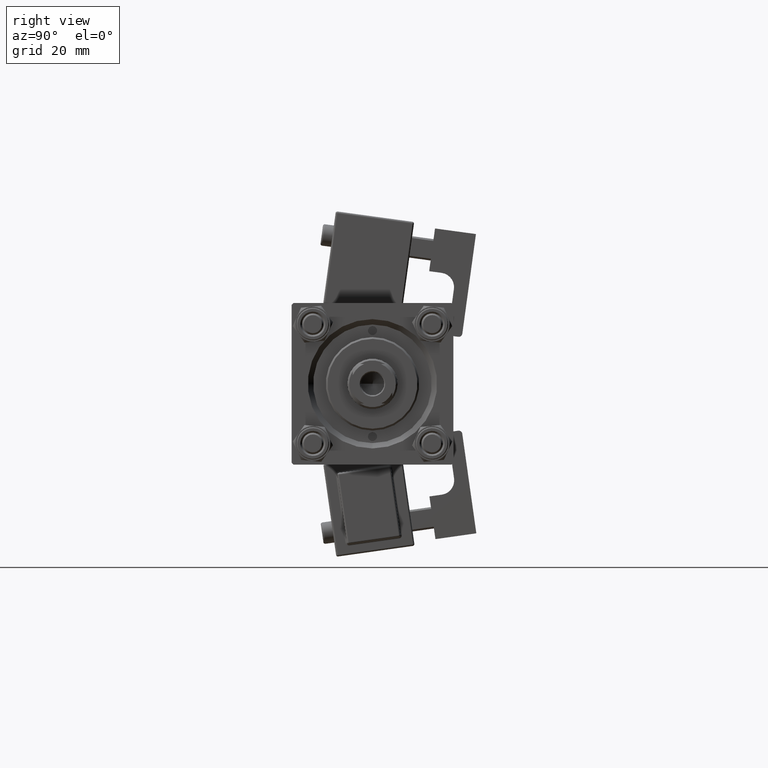
[diagram: clean part render]
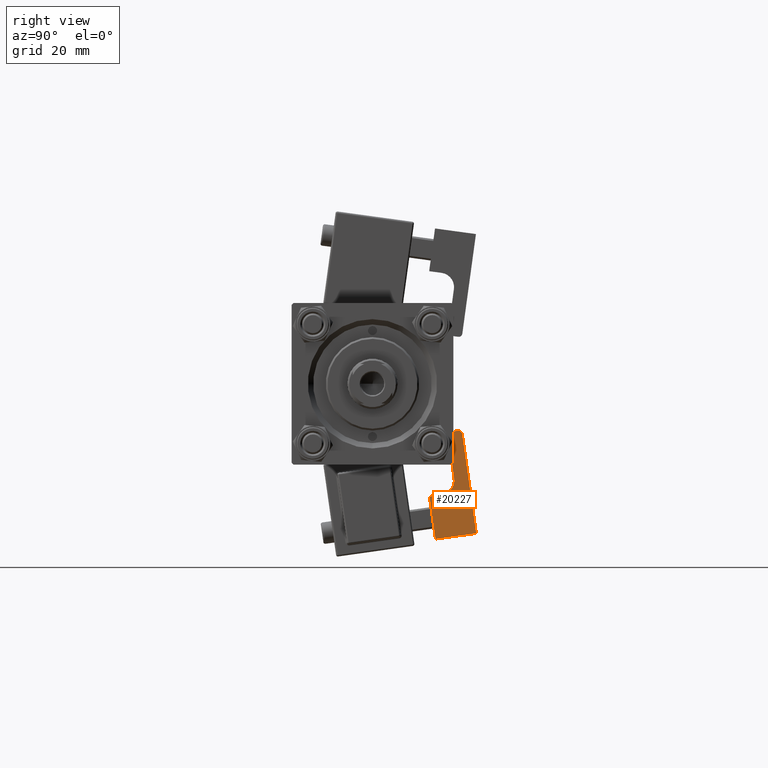
[diagram: same view with one face highlighted and labeled with its STEP entity id]
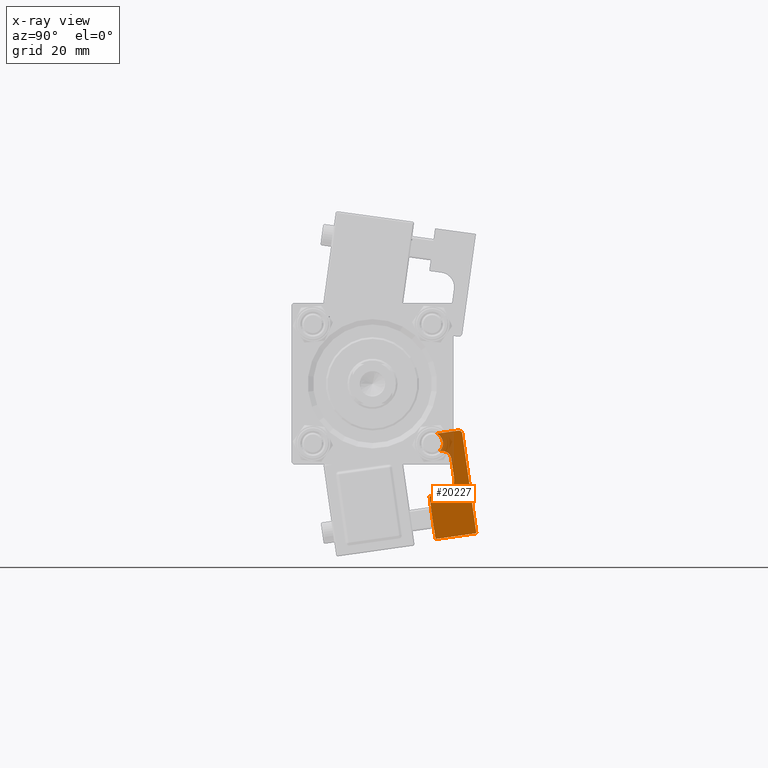
[diagram: x-ray of the same camera — body ghosted, the highlighted face saturated]
A machine part, right view. The second image highlights one B-rep face of the part: STEP entity #20227.
The next image is the same camera in x-ray: the body ghosted, the highlighted face saturated — about 9% of this face is hidden behind the body in this view.
In plain terms, the highlighted planar face has unit normal (-1, 0, -0).
Its self-contained STEP definition (entity closure, byte-faithful):
#615 = DIRECTION ( 'NONE',  ( -1.000000000000000000, 0.000000000000000000, 0.000000000000000000 ) ) ;
#954 = DIRECTION ( 'NONE',  ( 0.000000000000000000, 1.000000000000000000, 0.000000000000000000 ) ) ;
#1268 = ORIENTED_EDGE ( 'NONE', *, *, #29803, .T. ) ;
#2699 = LINE ( 'NONE', #47130, #24006 ) ;
#2921 = CIRCLE ( 'NONE', #13086, 2.499999999999998668 ) ;
#3013 = CARTESIAN_POINT ( 'NONE',  ( 5.750000000000000000, 1.749999999999997558, 16.00000000000000000 ) ) ;
#3387 = CARTESIAN_POINT ( 'NONE',  ( 5.750000000000000000, 1.749999999999999112, 21.50000000000000000 ) ) ;
#3876 = EDGE_CURVE ( 'NONE', #46003, #36386, #44143, .T. ) ;
#4122 = VERTEX_POINT ( 'NONE', #50728 ) ;
#4397 = ORIENTED_EDGE ( 'NONE', *, *, #21844, .F. ) ;
#4522 = DIRECTION ( 'NONE',  ( -0.000000000000000000, 1.000000000000000000, -0.000000000000000000 ) ) ;
#4870 = DIRECTION ( 'NONE',  ( 0.000000000000000000, 0.000000000000000000, 1.000000000000000000 ) ) ;
#4957 = LINE ( 'NONE', #16299, #51891 ) ;
#5061 = VERTEX_POINT ( 'NONE', #3387 ) ;
#5583 = EDGE_CURVE ( 'NONE', #6088, #17204, #42465, .T. ) ;
#6088 = VERTEX_POINT ( 'NONE', #50286 ) ;
#7258 = EDGE_CURVE ( 'NONE', #36386, #38201, #45037, .T. ) ;
#7927 = CARTESIAN_POINT ( 'NONE',  ( 5.750000000000000000, -1.249999999999999334, 29.00000000000000000 ) ) ;
#8273 = CARTESIAN_POINT ( 'NONE',  ( 5.750000000000000000, -1.015596606550550396, 24.19533616120787300 ) ) ;
#8499 = CARTESIAN_POINT ( 'NONE',  ( 5.750000000000000000, 5.750000000000001776, 0.000000000000000000 ) ) ;
#8556 = VERTEX_POINT ( 'NONE', #40981 ) ;
#8599 = DIRECTION ( 'NONE',  ( 1.000000000000000000, -0.000000000000000000, -0.000000000000000000 ) ) ;
#9686 = VECTOR ( 'NONE', #4522, 1000.000000000000000 ) ;
#10619 = CARTESIAN_POINT ( 'NONE',  ( 5.750000000000000000, 1.750000000000000000, 24.00000000000000000 ) ) ;
#10703 = CARTESIAN_POINT ( 'NONE',  ( 5.750000000000000000, -1.249999999999999334, 29.00000000000000000 ) ) ;
#11583 = DIRECTION ( 'NONE',  ( -1.000000000000000000, 0.000000000000000000, 0.000000000000000000 ) ) ;
#11756 = EDGE_CURVE ( 'NONE', #38201, #17282, #2699, .T. ) ;
#12101 = EDGE_CURVE ( 'NONE', #17282, #16673, #40632, .T. ) ;
#12304 = CARTESIAN_POINT ( 'NONE',  ( 5.750000000000000000, 4.750000000000001776, 28.00000000000000000 ) ) ;
#13068 = CARTESIAN_POINT ( 'NONE',  ( 5.750000000000000000, 5.750000000000001776, 12.00000000000000000 ) ) ;
#13086 = AXIS2_PLACEMENT_3D ( 'NONE', #22104, #21335, #29296 ) ;
#13122 = VERTEX_POINT ( 'NONE', #3013 ) ;
#13497 = EDGE_CURVE ( 'NONE', #5061, #13122, #46842, .T. ) ;
#13612 = VECTOR ( 'NONE', #27923, 1000.000000000000000 ) ;
#13683 = ORIENTED_EDGE ( 'NONE', *, *, #11756, .T. ) ;
#15280 = DIRECTION ( 'NONE',  ( 0.000000000000000000, 0.000000000000000000, 1.000000000000000000 ) ) ;
#15917 = CARTESIAN_POINT ( 'NONE',  ( 5.750000000000000000, 5.750000000000000000, 29.00000000000000000 ) ) ;
#15969 = CARTESIAN_POINT ( 'NONE',  ( 5.750000000000000000, -2.936149805543990521, 26.50000000000000000 ) ) ;
#16011 = ORIENTED_EDGE ( 'NONE', *, *, #33821, .T. ) ;
#16299 = CARTESIAN_POINT ( 'NONE',  ( 5.750000000000000000, -5.750000000000000000, 12.00000000000000000 ) ) ;
#16673 = VERTEX_POINT ( 'NONE', #32871 ) ;
#17001 = ORIENTED_EDGE ( 'NONE', *, *, #13497, .T. ) ;
#17204 = VERTEX_POINT ( 'NONE', #43848 ) ;
#17282 = VERTEX_POINT ( 'NONE', #27479 ) ;
#17699 = FACE_OUTER_BOUND ( 'NONE', #37095, .T. ) ;
#17704 = ORIENTED_EDGE ( 'NONE', *, *, #39920, .F. ) ;
#18449 = ORIENTED_EDGE ( 'NONE', *, *, #12101, .T. ) ;
#19822 = DIRECTION ( 'NONE',  ( 0.000000000000000000, 0.7682212795973759611, -0.6401843996644797086 ) ) ;
#19966 = CARTESIAN_POINT ( 'NONE',  ( 5.750000000000000000, 5.750000000000001776, 12.00000000000000000 ) ) ;
#20227 = ADVANCED_FACE ( 'NONE', ( #17699 ), #33837, .F. ) ;
#21060 = ORIENTED_EDGE ( 'NONE', *, *, #3876, .T. ) ;
#21070 = DIRECTION ( 'NONE',  ( -0.000000000000000000, -0.000000000000000000, -1.000000000000000000 ) ) ;
#21335 = DIRECTION ( 'NONE',  ( -1.000000000000000000, 0.000000000000000000, 0.000000000000000000 ) ) ;
#21685 = CARTESIAN_POINT ( 'NONE',  ( 5.750000000000000000, -2.250000000000001776, 12.00000000000000000 ) ) ;
#21844 = EDGE_CURVE ( 'NONE', #50713, #34511, #30330, .T. ) ;
#22104 = CARTESIAN_POINT ( 'NONE',  ( 5.750000000000000000, -0.7500000000000007772, 21.50000000000000000 ) ) ;
#24006 = VECTOR ( 'NONE', #34966, 1000.000000000000114 ) ;
#24181 = DIRECTION ( 'NONE',  ( 0.000000000000000000, 0.000000000000000000, 1.000000000000000000 ) ) ;
#24730 = AXIS2_PLACEMENT_3D ( 'NONE', #12304, #8599, #29244 ) ;
#24969 = CARTESIAN_POINT ( 'NONE',  ( 5.750000000000000000, -2.250000000000002665, 16.00000000000000000 ) ) ;
#25884 = ORIENTED_EDGE ( 'NONE', *, *, #7258, .T. ) ;
#27479 = CARTESIAN_POINT ( 'NONE',  ( 5.750000000000000000, -1.249999999999999334, 24.00000000000000000 ) ) ;
#27648 = ORIENTED_EDGE ( 'NONE', *, *, #52301, .T. ) ;
#27659 = VECTOR ( 'NONE', #32323, 1000.000000000000000 ) ;
#27923 = DIRECTION ( 'NONE',  ( -0.000000000000000000, 1.000000000000000000, -0.000000000000000000 ) ) ;
#28538 = VECTOR ( 'NONE', #33702, 1000.000000000000000 ) ;
#29244 = DIRECTION ( 'NONE',  ( 0.000000000000000000, -2.602085213965208275E-15, 1.000000000000000000 ) ) ;
#29296 = DIRECTION ( 'NONE',  ( 0.000000000000000000, 0.000000000000000000, 1.000000000000000000 ) ) ;
#29731 = VECTOR ( 'NONE', #19822, 1000.000000000000114 ) ;
#29803 = EDGE_CURVE ( 'NONE', #50713, #8556, #4957, .T. ) ;
#30192 = AXIS2_PLACEMENT_3D ( 'NONE', #24969, #615, #4870 ) ;
#30330 = LINE ( 'NONE', #19966, #13612 ) ;
#31328 = ORIENTED_EDGE ( 'NONE', *, *, #5583, .T. ) ;
#31678 = VECTOR ( 'NONE', #47882, 1000.000000000000000 ) ;
#32119 = CARTESIAN_POINT ( 'NONE',  ( 5.750000000000000000, -5.750000000000000000, 12.00000000000000000 ) ) ;
#32323 = DIRECTION ( 'NONE',  ( 0.000000000000000000, -1.000000000000000000, 0.000000000000000000 ) ) ;
#32871 = CARTESIAN_POINT ( 'NONE',  ( 5.750000000000000000, -0.7500000000000007772, 24.00000000000000000 ) ) ;
#33702 = DIRECTION ( 'NONE',  ( -0.000000000000000000, -0.000000000000000000, -1.000000000000000000 ) ) ;
#33821 = EDGE_CURVE ( 'NONE', #16673, #5061, #2921, .T. ) ;
#33837 = PLANE ( 'NONE',  #44834 ) ;
#34511 = VERTEX_POINT ( 'NONE', #21685 ) ;
#34966 = DIRECTION ( 'NONE',  ( 0.000000000000000000, -0.7682212795973755171, -0.6401843996644802637 ) ) ;
#36386 = VERTEX_POINT ( 'NONE', #44913 ) ;
#37095 = EDGE_LOOP ( 'NONE', ( #17704, #31328, #27648, #21060, #25884, #13683, #18449, #16011, #17001, #45558, #4397, #1268, #47557 ) ) ;
#38201 = VERTEX_POINT ( 'NONE', #8273 ) ;
#39920 = EDGE_CURVE ( 'NONE', #6088, #4122, #45596, .T. ) ;
#39966 = AXIS2_PLACEMENT_3D ( 'NONE', #15969, #44269, #24181 ) ;
#40632 = LINE ( 'NONE', #45396, #51852 ) ;
#40981 = CARTESIAN_POINT ( 'NONE',  ( 5.750000000000000000, -5.750000000000000000, 0.000000000000000000 ) ) ;
#41994 = CIRCLE ( 'NONE', #30192, 4.000000000000000000 ) ;
#42465 = CIRCLE ( 'NONE', #24730, 1.000000000000000888 ) ;
#43437 = LINE ( 'NONE', #15917, #27659 ) ;
#43717 = EDGE_CURVE ( 'NONE', #13122, #34511, #41994, .T. ) ;
#43848 = CARTESIAN_POINT ( 'NONE',  ( 5.750000000000000000, 4.750000000000002665, 29.00000000000000000 ) ) ;
#44143 = LINE ( 'NONE', #7927, #29731 ) ;
#44269 = DIRECTION ( 'NONE',  ( -1.000000000000000000, 0.000000000000000000, 0.000000000000000000 ) ) ;
#44719 = LINE ( 'NONE', #8499, #9686 ) ;
#44834 = AXIS2_PLACEMENT_3D ( 'NONE', #49957, #11583, #15280 ) ;
#44913 = CARTESIAN_POINT ( 'NONE',  ( 5.750000000000000000, -1.015596606550550618, 28.80466383879212700 ) ) ;
#45037 = CIRCLE ( 'NONE', #39966, 2.999999999999999112 ) ;
#45396 = CARTESIAN_POINT ( 'NONE',  ( 5.750000000000000000, -1.249999999999999334, 24.00000000000000000 ) ) ;
#45558 = ORIENTED_EDGE ( 'NONE', *, *, #43717, .T. ) ;
#45596 = LINE ( 'NONE', #13068, #28538 ) ;
#46003 = VERTEX_POINT ( 'NONE', #10703 ) ;
#46570 = EDGE_CURVE ( 'NONE', #8556, #4122, #44719, .T. ) ;
#46842 = LINE ( 'NONE', #10619, #31678 ) ;
#47130 = CARTESIAN_POINT ( 'NONE',  ( 5.750000000000000000, 1.749999999999999778, 26.50000000000000355 ) ) ;
#47557 = ORIENTED_EDGE ( 'NONE', *, *, #46570, .T. ) ;
#47882 = DIRECTION ( 'NONE',  ( 0.000000000000000000, -3.071906155375595568E-16, -1.000000000000000000 ) ) ;
#49957 = CARTESIAN_POINT ( 'NONE',  ( 5.750000000000000000, 5.750000000000001776, 12.00000000000000000 ) ) ;
#50286 = CARTESIAN_POINT ( 'NONE',  ( 5.750000000000000000, 5.750000000000001776, 28.00000000000000000 ) ) ;
#50713 = VERTEX_POINT ( 'NONE', #32119 ) ;
#50728 = CARTESIAN_POINT ( 'NONE',  ( 5.750000000000000000, 5.750000000000001776, 0.000000000000000000 ) ) ;
#51852 = VECTOR ( 'NONE', #954, 1000.000000000000000 ) ;
#51891 = VECTOR ( 'NONE', #21070, 1000.000000000000000 ) ;
#52301 = EDGE_CURVE ( 'NONE', #17204, #46003, #43437, .T. ) ;